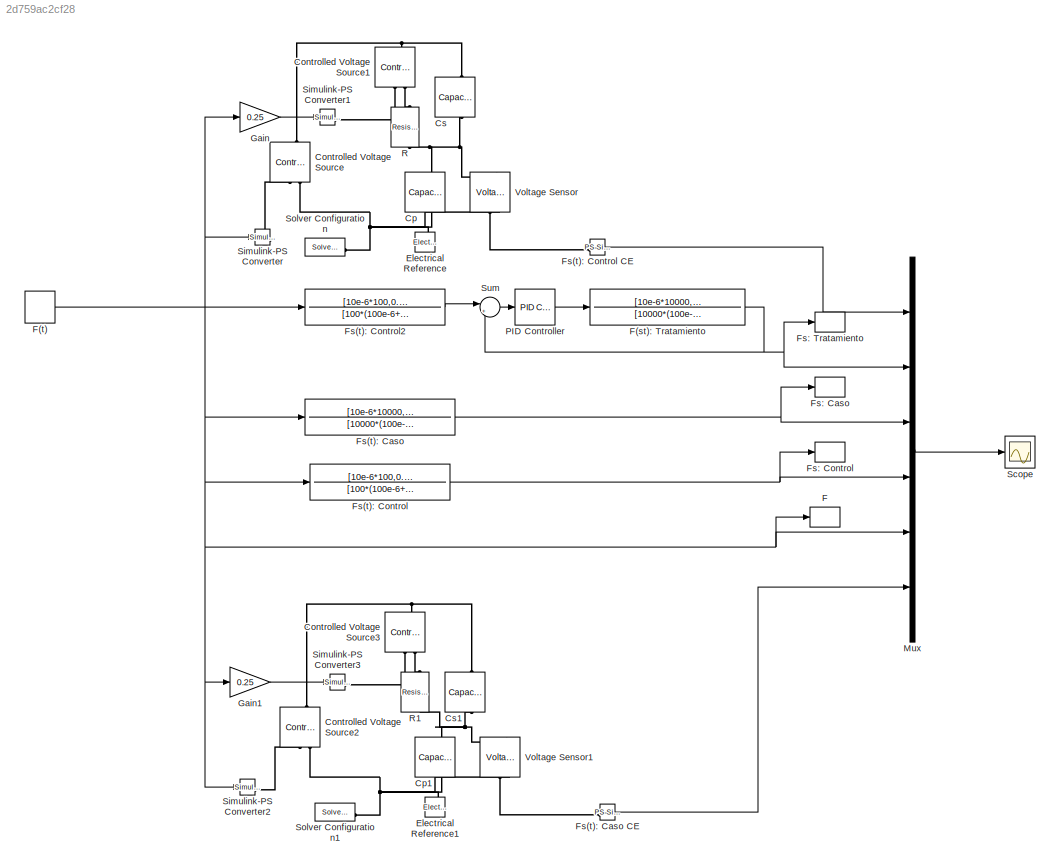
MODEL slx_2d759ac2cf28
KIND model
CONFIG AbsTol = auto
CONFIG EnableMultiTasking = off
CONFIG FixedStep = auto
CONFIG MaxStep = 1e-3
CONFIG MinStep = auto
CONFIG RelTol = 1e-6
CONFIG SampleTimeConstraint = Unconstrained
CONFIG SolverName = ode23tb
CONFIG StartTime = 0.0
CONFIG StopTime = 10.0
BLOCK [Reference] Controlled Voltage Source  REF=fl_lib/Electrical/Electrical Sources/Controlled Voltage
Source
  NameLocation = right
  SourceBlock = fl_lib/Electrical/Electrical Sources/Controlled Voltage\nSource
  SourceType = Controlled Voltage\nSource
BLOCK [Reference] Controlled Voltage Source1  REF=fl_lib/Electrical/Electrical Sources/Controlled Voltage
Source
  NameLocation = right
  SourceBlock = fl_lib/Electrical/Electrical Sources/Controlled Voltage\nSource
  SourceType = Controlled Voltage\nSource
BLOCK [Reference] Controlled Voltage Source2  REF=fl_lib/Electrical/Electrical Sources/Controlled Voltage
Source
  NameLocation = right
  SourceBlock = fl_lib/Electrical/Electrical Sources/Controlled Voltage\nSource
  SourceType = Controlled Voltage\nSource
BLOCK [Reference] Controlled Voltage Source3  REF=fl_lib/Electrical/Electrical Sources/Controlled Voltage
Source
  NameLocation = right
  SourceBlock = fl_lib/Electrical/Electrical Sources/Controlled Voltage\nSource
  SourceType = Controlled Voltage\nSource
BLOCK [Reference] Cp  REF=fl_lib/Electrical/Electrical Elements/Capacitor
  NameLocation = left
  SourceBlock = fl_lib/Electrical/Electrical Elements/Capacitor
  SourceType = Capacitor
BLOCK [Reference] Cp1  REF=fl_lib/Electrical/Electrical Elements/Capacitor
  NameLocation = left
  SourceBlock = fl_lib/Electrical/Electrical Elements/Capacitor
  SourceType = Capacitor
BLOCK [Reference] Cs  REF=fl_lib/Electrical/Electrical Elements/Capacitor
  NameLocation = left
  SourceBlock = fl_lib/Electrical/Electrical Elements/Capacitor
  SourceType = Capacitor
BLOCK [Reference] Cs1  REF=fl_lib/Electrical/Electrical Elements/Capacitor
  NameLocation = left
  SourceBlock = fl_lib/Electrical/Electrical Elements/Capacitor
  SourceType = Capacitor
BLOCK [Reference] Electrical Reference  REF=fl_lib/Electrical/Electrical Elements/Electrical Reference
  NameLocation = right
  SourceBlock = fl_lib/Electrical/Electrical Elements/Electrical Reference
  SourceType = Electrical Reference
BLOCK [Reference] Electrical Reference1  REF=fl_lib/Electrical/Electrical Elements/Electrical Reference
  NameLocation = right
  SourceBlock = fl_lib/Electrical/Electrical Elements/Electrical Reference
  SourceType = Electrical Reference
BLOCK [ToWorkspace] F
  FixptAsFi = on
  MaxDataPoints = inf
  SampleTime = -1
  VariableName = F
BLOCK [TransferFcn] F(st): Tratamiento
  Denominator = [10000*(100e-6+10e-6),1]
  Numerator = [10e-6*10000,0.75]
BLOCK [DiscretePulseGenerator] F(t)
  Period = 10
  PhaseDelay = 1
  PulseType = Time based
  PulseWidth = 10
BLOCK [TransferFcn] Fs(t): Caso
  Denominator = [10000*(100e-6+10e-6),1]
  Numerator = [10e-6*10000,0.75]
BLOCK [Reference] Fs(t): Caso CE  REF=nesl_utility/PS-Simulink
Converter
  SourceBlock = nesl_utility/PS-Simulink\nConverter
  SourceType = PS-Simulink\nConverter
BLOCK [TransferFcn] Fs(t): Control
  Denominator = [100*(100e-6+10e-6),1]
  Numerator = [10e-6*100,0.75]
BLOCK [Reference] Fs(t): Control CE  REF=nesl_utility/PS-Simulink
Converter
  SourceBlock = nesl_utility/PS-Simulink\nConverter
  SourceType = PS-Simulink\nConverter
BLOCK [TransferFcn] Fs(t): Control2
  Denominator = [100*(100e-6+10e-6),1]
  Numerator = [10e-6*100,0.75]
BLOCK [ToWorkspace] Fs: Caso
  FixptAsFi = on
  MaxDataPoints = inf
  SampleTime = -1
  VariableName = Fs2
BLOCK [ToWorkspace] Fs: Control
  FixptAsFi = on
  MaxDataPoints = inf
  SampleTime = -1
  VariableName = Fs1
BLOCK [ToWorkspace] Fs: Tratamiento
  FixptAsFi = on
  MaxDataPoints = inf
  SampleTime = -1
  VariableName = Fs3
BLOCK [Gain] Gain
  Gain = 0.25
BLOCK [Gain] Gain1
  Gain = 0.25
BLOCK [Mux] Mux
  DisplayOption = bar
  Inputs = 6
BLOCK [Reference] PID Controller  REF=slpidlib/PID Controller
  LibrarySourceBlock = simulink/Continuous/PID Controller
  SourceBlock = slpidlib/PID Controller
  SourceType = PID 1dof
BLOCK [Reference] R  REF=fl_lib/Electrical/Electrical Elements/Resistor
  NameLocation = left
  SourceBlock = fl_lib/Electrical/Electrical Elements/Resistor
  SourceType = Resistor
BLOCK [Reference] R1  REF=fl_lib/Electrical/Electrical Elements/Resistor
  NameLocation = left
  SourceBlock = fl_lib/Electrical/Electrical Elements/Resistor
  SourceType = Resistor
BLOCK [Scope] Scope
  Floating = off
  NumInputPorts = 1
  ScopeSpecificationString = Simulink.scopes.TimeScopeBlockCfg('CurrentConfiguration', extmgr.ConfigurationSet(extmgr.Configuration('Core','General UI',true,'FigureColor',[1 1 1]),extmgr.Configuration('Core','Source UI',true),extmgr.Configuration('Sources','WiredSimulink',true),extmgr.Configuration('Visuals','Time Domain',true,'SerializedDisplays',{struct('MinYLimReal','-0.14248','MaxYLimReal','1.12694','YLabelReal','','MinYL...<+2401ch>
BLOCK [Reference] Simulink-PS Converter  REF=nesl_utility/Simulink-PS
Converter
  SourceBlock = nesl_utility/Simulink-PS\nConverter
  SourceType = Simulink-PS\nConverter
BLOCK [Reference] Simulink-PS Converter1  REF=nesl_utility/Simulink-PS
Converter
  SourceBlock = nesl_utility/Simulink-PS\nConverter
  SourceType = Simulink-PS\nConverter
BLOCK [Reference] Simulink-PS Converter2  REF=nesl_utility/Simulink-PS
Converter
  SourceBlock = nesl_utility/Simulink-PS\nConverter
  SourceType = Simulink-PS\nConverter
BLOCK [Reference] Simulink-PS Converter3  REF=nesl_utility/Simulink-PS
Converter
  SourceBlock = nesl_utility/Simulink-PS\nConverter
  SourceType = Simulink-PS\nConverter
BLOCK [Reference] Solver Configuration  REF=nesl_utility/Solver
Configuration
  SourceBlock = nesl_utility/Solver\nConfiguration
  SourceType = Solver\nConfiguration
BLOCK [Reference] Solver Configuration1  REF=nesl_utility/Solver
Configuration
  SourceBlock = nesl_utility/Solver\nConfiguration
  SourceType = Solver\nConfiguration
BLOCK [Sum] Sum
  Inputs = |+-
BLOCK [Reference] Voltage Sensor  REF=fl_lib/Electrical/Electrical Sensors/Voltage Sensor
  NameLocation = right
  SourceBlock = fl_lib/Electrical/Electrical Sensors/Voltage Sensor
  SourceType = Voltage Sensor
BLOCK [Reference] Voltage Sensor1  REF=fl_lib/Electrical/Electrical Sensors/Voltage Sensor
  NameLocation = right
  SourceBlock = fl_lib/Electrical/Electrical Sensors/Voltage Sensor
  SourceType = Voltage Sensor
NET F(st): Tratamiento:1 -> Fs: Tratamiento:1, Mux:2, Sum:2
NET F(t):1 -> F:1, Fs(t): Caso:1, Fs(t): Control2:1, Fs(t): Control:1, Gain1:1, Gain:1, Mux:5, Simulink-PS Converter2:1, Simulink-PS Converter:1
LINE Fs(t): Caso CE:1 -> Mux:6
NET Fs(t): Caso:1 -> Fs: Caso:1, Mux:3
LINE Fs(t): Control CE:1 -> Mux:1
LINE Fs(t): Control2:1 -> Sum:1
NET Fs(t): Control:1 -> Fs: Control:1, Mux:4
LINE Gain1:1 -> Simulink-PS Converter3:1
LINE Gain:1 -> Simulink-PS Converter1:1
LINE Mux:1 -> Scope:1
LINE PID Controller:1 -> F(st): Tratamiento:1
LINE Sum:1 -> PID Controller:1
PNET net1: Controlled Voltage Source1:LConn1 -- Controlled Voltage Source:LConn1 -- Cs:LConn1
PLINE Controlled Voltage Source1:RConn1 -- Simulink-PS Converter1:RConn1
PLINE Controlled Voltage Source1:RConn2 -- R:LConn1
PNET net2: Controlled Voltage Source2:LConn1 -- Controlled Voltage Source3:LConn1 -- Cs1:LConn1
PLINE Controlled Voltage Source2:RConn1 -- Simulink-PS Converter2:RConn1
PNET net3: Controlled Voltage Source2:RConn2 -- Cp1:RConn1 -- Electrical Reference1:LConn1 -- Solver Configuration1:RConn1 -- Voltage Sensor1:RConn2
PLINE Controlled Voltage Source3:RConn1 -- Simulink-PS Converter3:RConn1
PLINE Controlled Voltage Source3:RConn2 -- R1:LConn1
PLINE Controlled Voltage Source:RConn1 -- Simulink-PS Converter:RConn1
PNET net4: Controlled Voltage Source:RConn2 -- Cp:RConn1 -- Electrical Reference:LConn1 -- Solver Configuration:RConn1 -- Voltage Sensor:RConn2
PNET net5: Cp1:LConn1 -- Cs1:RConn1 -- R1:RConn1 -- Voltage Sensor1:LConn1
PNET net6: Cp:LConn1 -- Cs:RConn1 -- R:RConn1 -- Voltage Sensor:LConn1
PLINE Fs(t): Caso CE:LConn1 -- Voltage Sensor1:RConn1
PLINE Fs(t): Control CE:LConn1 -- Voltage Sensor:RConn1
note: NET lines group one-source signal fan-out (src -> all destinations, sorted); 1:1 wires keep LINE; PNET lines group multi-terminal physical nets as a canonical sorted terminal list (undirected conserving connections); 2-terminal nets keep the pairwise PLINE form
